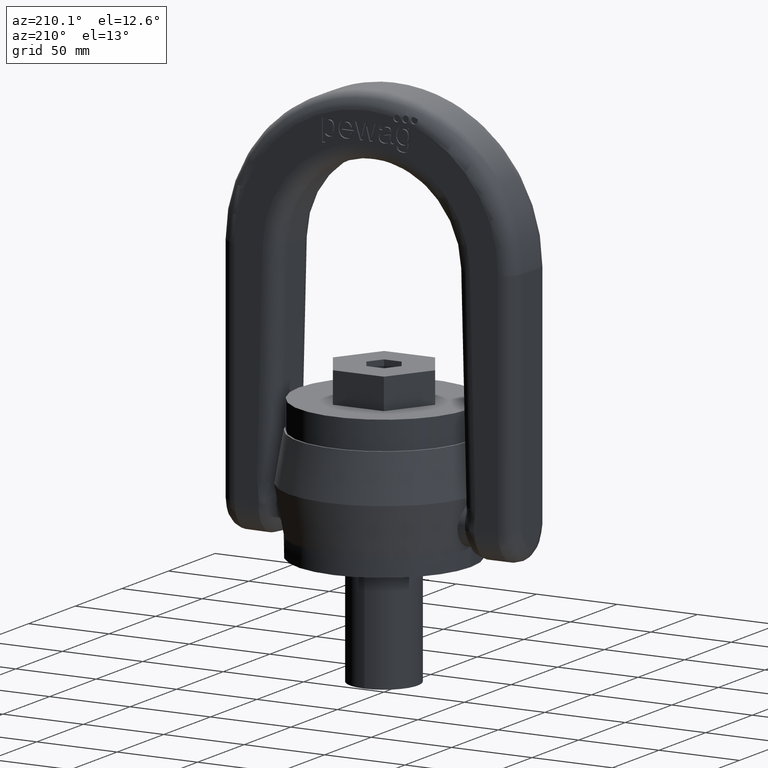
[diagram: clean part render]
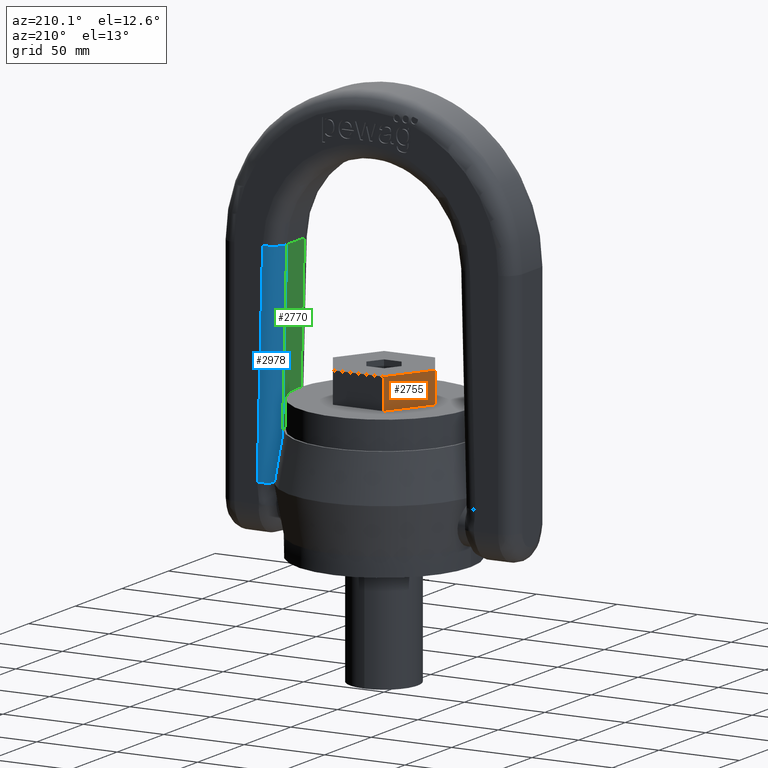
[diagram: same view with three faces highlighted in distinct colors, each labeled with its STEP entity id]
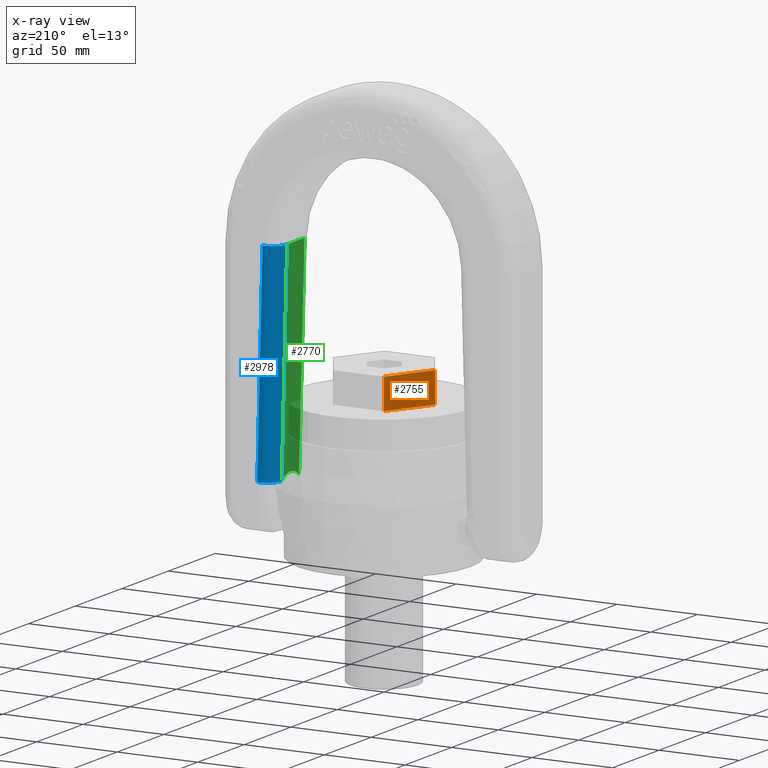
[diagram: x-ray of the same camera — body ghosted, the three highlighted faces saturated]
A machine part, auxiliary view with three faces highlighted in distinct colors.
The next image is the same camera in x-ray (body ghosted, the three faces saturated) — at least one of them is partly hidden behind the body in this view.
Their STEP definitions:

[orange] entity #2755 — the highlighted planar face has unit normal (0.866, -0.5, 0).
#1758=LINE('',#6626,#2040);
#1765=LINE('',#6640,#2047);
#1772=LINE('',#6654,#2054);
#1774=LINE('',#6658,#2056);
#2040=VECTOR('',#5847,1.);
#2047=VECTOR('',#5856,1.);
#2054=VECTOR('',#5871,1.);
#2056=VECTOR('',#5875,1.);
#2419=FACE_OUTER_BOUND('',#3085,.T.);
#2636=PLANE('',#5628);
#2755=ADVANCED_FACE('',(#2419),#2636,.F.);
#3085=EDGE_LOOP('',(#3379,#3380,#3381,#3382));
#3379=ORIENTED_EDGE('',*,*,#4954,.T.);
#3380=ORIENTED_EDGE('',*,*,#4961,.F.);
#3381=ORIENTED_EDGE('',*,*,#4970,.F.);
#3382=ORIENTED_EDGE('',*,*,#4968,.T.);
#4553=VERTEX_POINT('',#6624);
#4555=VERTEX_POINT('',#6627);
#4560=VERTEX_POINT('',#6639);
#4564=VERTEX_POINT('',#6655);
#4954=EDGE_CURVE('',#4555,#4553,#1758,.T.);
#4961=EDGE_CURVE('',#4560,#4553,#1765,.T.);
#4968=EDGE_CURVE('',#4564,#4555,#1772,.T.);
#4970=EDGE_CURVE('',#4564,#4560,#1774,.T.);
#5628=AXIS2_PLACEMENT_3D('',#6659,#5876,#5877);
#5847=DIRECTION('',(-0.5,-0.866025403784439,0.));
#5856=DIRECTION('',(0.,0.,-1.));
#5871=DIRECTION('',(0.,0.,-1.));
#5875=DIRECTION('',(-0.5,-0.866025403784439,0.));
#5876=DIRECTION('',(0.866025403784439,-0.5,0.));
#5877=DIRECTION('',(0.5,0.866025403784439,0.));
#6624=CARTESIAN_POINT('',(-31.7542648054294,0.,87.));
#6626=CARTESIAN_POINT('',(-15.8771324027147,27.5,87.));
#6627=CARTESIAN_POINT('',(-15.8771324027147,27.5,87.));
#6639=CARTESIAN_POINT('',(-31.7542648054294,0.,106.));
#6640=CARTESIAN_POINT('',(-31.7542648054294,0.,106.));
#6654=CARTESIAN_POINT('',(-15.8771324027147,27.5,106.));
#6655=CARTESIAN_POINT('',(-15.8771324027147,27.5,106.));
#6658=CARTESIAN_POINT('',(-15.8771324027147,27.5,106.));
#6659=CARTESIAN_POINT('',(-15.8771324027147,27.5,106.));

[blue] entity #2978 — the highlighted cylindrical surface (edge-blend (fillet) strip) has radius 9.5 mm, axis along (-0.0255, 0, 0.9997).
#1840=LINE('',#7081,#2122);
#1934=LINE('',#8306,#2261);
#2122=VECTOR('',#5995,1.);
#2261=VECTOR('',#6252,1.);
#2624=FACE_OUTER_BOUND('',#3334,.T.);
#2978=ADVANCED_FACE('',(#2624),#3001,.T.);
#3001=CYLINDRICAL_SURFACE('',#5808,9.5);
#3334=EDGE_LOOP('',(#4533,#4534,#4535,#4536));
#4533=ORIENTED_EDGE('',*,*,#5545,.T.);
#4534=ORIENTED_EDGE('',*,*,#5086,.F.);
#4535=ORIENTED_EDGE('',*,*,#5547,.F.);
#4536=ORIENTED_EDGE('',*,*,#5298,.F.);
#4669=VERTEX_POINT('',#7076);
#4671=VERTEX_POINT('',#7082);
#4798=VERTEX_POINT('',#8305);
#4799=VERTEX_POINT('',#8307);
#5086=EDGE_CURVE('',#4669,#4671,#1840,.T.);
#5298=EDGE_CURVE('',#4798,#4799,#1934,.T.);
#5545=EDGE_CURVE('',#4798,#4671,#5601,.T.);
#5547=EDGE_CURVE('',#4799,#4669,#5603,.T.);
#5601=CIRCLE('',#5805,9.5);
#5603=CIRCLE('',#5807,9.5);
#5805=AXIS2_PLACEMENT_3D('',#9828,#6584,#6585);
#5807=AXIS2_PLACEMENT_3D('',#9878,#6588,#6589);
#5808=AXIS2_PLACEMENT_3D('',#9879,#6590,#6591);
#5995=DIRECTION('',(0.0255100308212767,-5.97677249125002E-17,-0.999674566210173));
#6252=DIRECTION('',(-0.0255100308212767,5.97677249125002E-17,0.999674566210173));
#6584=DIRECTION('',(-0.0255100308212817,5.9767724912512E-17,0.999674566210173));
#6585=DIRECTION('',(-0.999674566210173,0.,-0.0255100308212817));
#6588=DIRECTION('',(-0.0255100308212788,7.45311146754767E-17,0.999674566210173));
#6589=DIRECTION('',(0.999674566210172,0.,0.0255100308212788));
#6590=DIRECTION('',(-0.0255100308212767,5.97677249125002E-17,0.999674566210173));
#6591=DIRECTION('',(0.999674566210172,0.,0.0255100308212759));
#7076=CARTESIAN_POINT('',(54.9821011415595,9.49999999999985,167.40305169517));
#7081=CARTESIAN_POINT('',(54.9821011415595,9.49999999999985,167.40305169517));
#7082=CARTESIAN_POINT('',(58.320709071532,9.4999999999998,36.5713228931242));
#8305=CARTESIAN_POINT('',(67.8176174505286,18.9999999999998,36.8136681859264));
#8306=CARTESIAN_POINT('',(64.4790095205561,18.9999999999998,167.645396987972));
#8307=CARTESIAN_POINT('',(64.4790095205561,18.9999999999998,167.645396987972));
#9828=CARTESIAN_POINT('',(67.8176174505286,9.49999999999984,36.8136681859264));
#9878=CARTESIAN_POINT('',(64.4790095205561,9.49999999999985,167.645396987972));
#9879=CARTESIAN_POINT('',(64.4790095205561,9.49999999999985,167.645396987972));

[green] entity #2770 — the highlighted planar face has unit normal (0.9997, 0, 0.0255).
#312=ELLIPSE('',#5655,14.2546389411732,14.25);
#1839=LINE('',#7077,#2121);
#1840=LINE('',#7081,#2122);
#1841=LINE('',#7085,#2123);
#2121=VECTOR('',#5990,1.);
#2122=VECTOR('',#5995,1.);
#2123=VECTOR('',#5998,1.);
#2432=FACE_OUTER_BOUND('',#3106,.T.);
#2648=PLANE('',#5656);
#2770=ADVANCED_FACE('',(#2432),#2648,.F.);
#3106=EDGE_LOOP('',(#3525,#3526,#3527,#3528));
#3525=ORIENTED_EDGE('',*,*,#5084,.T.);
#3526=ORIENTED_EDGE('',*,*,#5086,.T.);
#3527=ORIENTED_EDGE('',*,*,#5087,.F.);
#3528=ORIENTED_EDGE('',*,*,#5088,.T.);
#4669=VERTEX_POINT('',#7076);
#4670=VERTEX_POINT('',#7078);
#4671=VERTEX_POINT('',#7082);
#4672=VERTEX_POINT('',#7084);
#5084=EDGE_CURVE('',#4670,#4669,#1839,.T.);
#5086=EDGE_CURVE('',#4669,#4671,#1840,.T.);
#5087=EDGE_CURVE('',#4672,#4671,#312,.T.);
#5088=EDGE_CURVE('',#4672,#4670,#1841,.T.);
#5655=AXIS2_PLACEMENT_3D('',#7083,#5996,#5997);
#5656=AXIS2_PLACEMENT_3D('',#7086,#5999,#6000);
#5990=DIRECTION('',(0.,1.,0.));
#5995=DIRECTION('',(0.0255100308212767,-5.97677249125002E-17,-0.999674566210173));
#5996=DIRECTION('',(-0.999674566210173,0.,-0.0255100308212767));
#5997=DIRECTION('',(-0.0255100308212767,0.,0.999674566210173));
#5998=DIRECTION('',(-0.0255100308212767,0.,0.999674566210173));
#5999=DIRECTION('',(0.999674566210173,0.,0.0255100308212767));
#6000=DIRECTION('',(0.0255100308212767,0.,-0.999674566210173));
#7076=CARTESIAN_POINT('',(54.9821011415595,9.49999999999985,167.40305169517));
#7077=CARTESIAN_POINT('',(54.9821011415595,-19.,167.40305169517));
#7078=CARTESIAN_POINT('',(54.9821011415595,-9.5,167.40305169517));
#7081=CARTESIAN_POINT('',(54.9821011415595,9.49999999999985,167.40305169517));
#7082=CARTESIAN_POINT('',(58.320709071532,9.4999999999998,36.5713228931242));
#7083=CARTESIAN_POINT('',(58.5917475509779,0.,25.95));
#7084=CARTESIAN_POINT('',(58.320709071532,-9.5,36.5713228931241));
#7085=CARTESIAN_POINT('',(54.9821011415595,-9.5,167.40305169517));
#7086=CARTESIAN_POINT('',(54.9821011415595,-19.,167.40305169517));